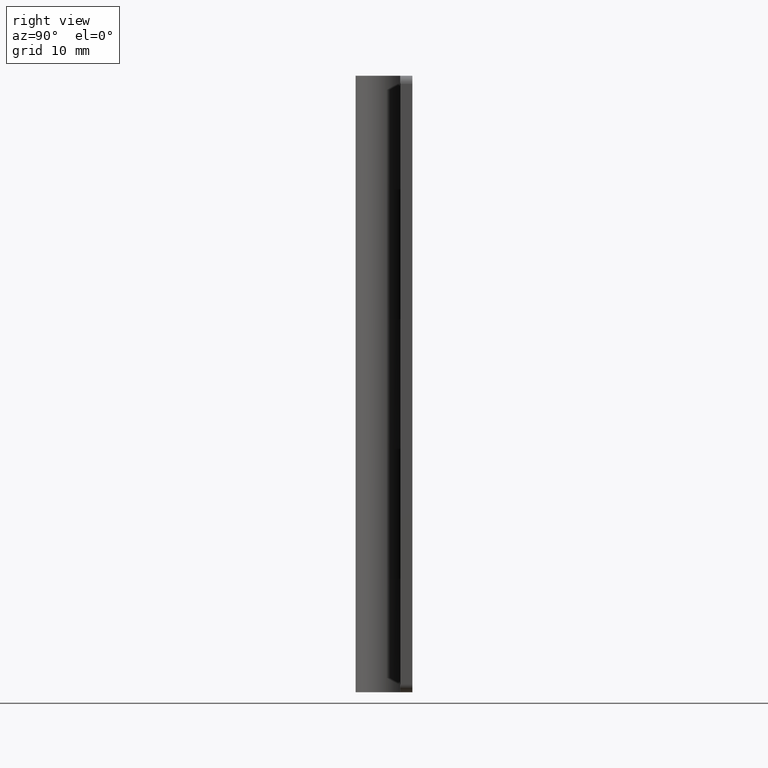
[diagram: clean part render]
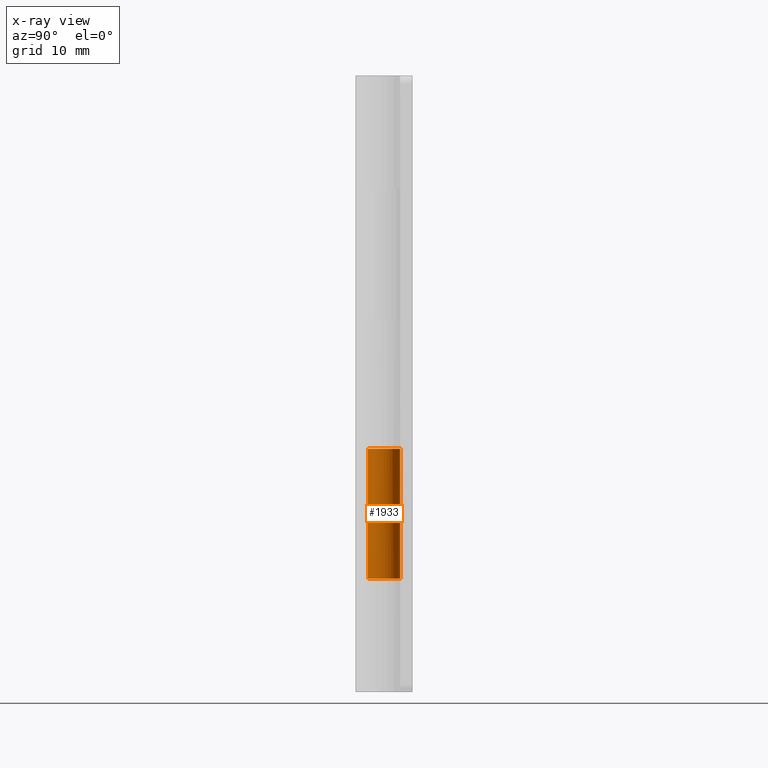
[diagram: x-ray — body ghosted, one internal face saturated and labeled with its STEP entity id]
A machine part, right view, then the same camera in x-ray: the body is ghosted and one INTERNAL B-rep face — a face not visible from any outside direction — is saturated and labeled: STEP entity #1933.
In plain terms, the highlighted face is a freeform B-spline surface patch.
Its self-contained STEP definition (entity closure, byte-faithful):
#1475=CARTESIAN_POINT('',(-7.657178E-016,2.0,30.000008000000150));
#1476=VERTEX_POINT('',#1475);
#1482=CARTESIAN_POINT('',(-1.660833329066700,1.114285714285716,30.000008000000150));
#1483=VERTEX_POINT('',#1482);
#1484=CARTESIAN_POINT('',(-1.660833329066699,1.114285714285715,30.000008000000150));
#1485=CARTESIAN_POINT('',(-2.530854670114225,-0.182473655134446,30.000008000000150));
#1486=CARTESIAN_POINT('',(-1.483807222493547,-1.341013097056097,30.000008000000150));
#1487=CARTESIAN_POINT('',(-0.436759774872868,-2.499552538977749,30.000008000000150));
#1488=CARTESIAN_POINT('',(0.941123948114321,-1.764733893335115,30.000008000000150));
#1489=CARTESIAN_POINT('',(2.319007671101508,-1.029915247692482,30.000008000000150));
#1490=CARTESIAN_POINT('',(1.940292218542124,0.485042376153759,30.000008000000150));
#1491=CARTESIAN_POINT('',(1.561576765982739,2.000000000000000,30.000008000000150));
#1492=CARTESIAN_POINT('',(0.0,2.0,30.000008000000150));
#1500=(BOUNDED_CURVE()B_SPLINE_CURVE(2,(#1484,#1485,#1486,#1487,#1488,#1489,#1490,#1491,#1492),.UNSPECIFIED.,.F.,.U.)B_SPLINE_CURVE_WITH_KNOTS((3,2,2,2,3),(0.0,0.250000000000000,0.500000000000000,0.750000000000000,1.0),.UNSPECIFIED.)CURVE()GEOMETRIC_REPRESENTATION_ITEM()RATIONAL_B_SPLINE_CURVE((1.0,0.788200858942973,1.0,0.788200858942973,1.0,0.788200858942973,1.0,0.788200858942973,1.0))REPRESENTATION_ITEM(''));
#1501=EDGE_CURVE('',#1483,#1476,#1500,.T.);
#1614=CARTESIAN_POINT('',(-7.657178E-016,2.0,14.000000000000121));
#1615=VERTEX_POINT('',#1614);
#1658=CARTESIAN_POINT('',(-1.660833329066700,1.114285714285716,14.000000000000121));
#1659=VERTEX_POINT('',#1658);
#1665=CARTESIAN_POINT('',(0.0,2.0,14.000000000000121));
#1666=CARTESIAN_POINT('',(1.561576765982738,2.000000000000000,14.000000000000117));
#1667=CARTESIAN_POINT('',(1.940292218542123,0.485042376153760,14.000000000000121));
#1668=CARTESIAN_POINT('',(2.319007671101509,-1.029915247692482,14.000000000000117));
#1669=CARTESIAN_POINT('',(0.941123948114320,-1.764733893335116,14.000000000000121));
#1670=CARTESIAN_POINT('',(-0.436759774872868,-2.499552538977748,14.000000000000117));
#1671=CARTESIAN_POINT('',(-1.483807222493546,-1.341013097056098,14.000000000000121));
#1672=CARTESIAN_POINT('',(-2.530854670114225,-0.182473655134446,14.000000000000117));
#1673=CARTESIAN_POINT('',(-1.660833329066699,1.114285714285715,14.000000000000121));
#1681=(BOUNDED_CURVE()B_SPLINE_CURVE(2,(#1665,#1666,#1667,#1668,#1669,#1670,#1671,#1672,#1673),.UNSPECIFIED.,.F.,.U.)B_SPLINE_CURVE_WITH_KNOTS((3,2,2,2,3),(0.0,0.250000000000000,0.500000000000000,0.750000000000000,1.0),.UNSPECIFIED.)CURVE()GEOMETRIC_REPRESENTATION_ITEM()RATIONAL_B_SPLINE_CURVE((1.0,0.788200858942973,1.0,0.788200858942973,1.0,0.788200858942973,1.0,0.788200858942973,1.0))REPRESENTATION_ITEM(''));
#1682=EDGE_CURVE('',#1615,#1659,#1681,.T.);
#1897=CARTESIAN_POINT('',(-0.052353896615750,1.999314649951114,13.599999800000120));
#1898=CARTESIAN_POINT('',(-0.052353896615750,1.999314649951114,30.410008205000150));
#1899=CARTESIAN_POINT('',(2.446176245649101,2.064740964294715,13.599999800000122));
#1900=CARTESIAN_POINT('',(2.446176245649101,2.064740964294715,30.410008205000153));
#1901=CARTESIAN_POINT('',(1.962135980597785,-0.387327243611348,13.599999800000120));
#1902=CARTESIAN_POINT('',(1.962135980597785,-0.387327243611348,30.410008205000150));
#1903=CARTESIAN_POINT('',(1.478095715546470,-2.839395451517412,13.599999800000122));
#1904=CARTESIAN_POINT('',(1.478095715546470,-2.839395451517412,30.410008205000153));
#1905=CARTESIAN_POINT('',(-0.808155059974380,-1.829449479771935,13.599999800000120));
#1906=CARTESIAN_POINT('',(-0.808155059974380,-1.829449479771935,30.410008205000150));
#1907=CARTESIAN_POINT('',(-3.094405835495230,-0.819503508026459,13.599999800000122));
#1908=CARTESIAN_POINT('',(-3.094405835495230,-0.819503508026459,30.410008205000153));
#1909=CARTESIAN_POINT('',(-1.607713721234437,1.189645573502679,13.599999800000120));
#1910=CARTESIAN_POINT('',(-1.607713721234437,1.189645573502679,30.410008205000150));
#1918=(BOUNDED_SURFACE()B_SPLINE_SURFACE(1,2,((#1897,#1899,#1901,#1903,#1905,#1907,#1909),(#1898,#1900,#1902,#1904,#1906,#1908,#1910)),.UNSPECIFIED.,.F.,.F.,.U.)B_SPLINE_SURFACE_WITH_KNOTS((2,2),(3,2,2,3),(0.0,16.810008405000030),(0.0,3.844409384667811,7.688818769335621,11.533228154003430),.UNSPECIFIED.)GEOMETRIC_REPRESENTATION_ITEM()RATIONAL_B_SPLINE_SURFACE(((1.0,0.624788514543960,1.0,0.624788514543960,1.0,0.624788514543960,1.0),(1.0,0.624788514543960,1.0,0.624788514543960,1.0,0.624788514543960,1.0)))REPRESENTATION_ITEM('')SURFACE());
#1919=CARTESIAN_POINT('',(-1.660833329066700,1.114285714285716,14.000000000000121));
#1920=CARTESIAN_POINT('',(-1.660833329066700,1.114285714285716,30.000008000000150));
#1921=QUASI_UNIFORM_CURVE('',1,(#1919,#1920),.UNSPECIFIED.,.F.,.U.);
#1922=EDGE_CURVE('',#1659,#1483,#1921,.T.);
#1923=ORIENTED_EDGE('',*,*,#1922,.T.);
#1924=ORIENTED_EDGE('',*,*,#1501,.T.);
#1925=CARTESIAN_POINT('',(-7.657178E-016,2.0,14.000000000000121));
#1926=CARTESIAN_POINT('',(-7.657178E-016,2.0,30.000008000000150));
#1927=QUASI_UNIFORM_CURVE('',1,(#1925,#1926),.UNSPECIFIED.,.F.,.U.);
#1928=EDGE_CURVE('',#1615,#1476,#1927,.T.);
#1929=ORIENTED_EDGE('',*,*,#1928,.F.);
#1930=ORIENTED_EDGE('',*,*,#1682,.T.);
#1931=EDGE_LOOP('',(#1923,#1924,#1929,#1930));
#1932=FACE_OUTER_BOUND('',#1931,.T.);
#1933=ADVANCED_FACE('',(#1932),#1918,.F.);